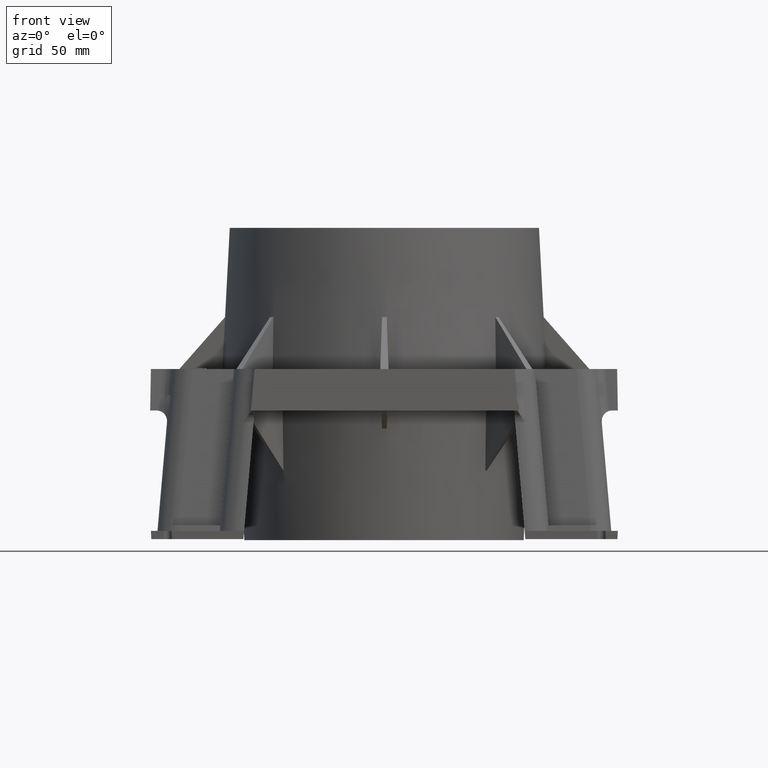
[diagram: clean part render]
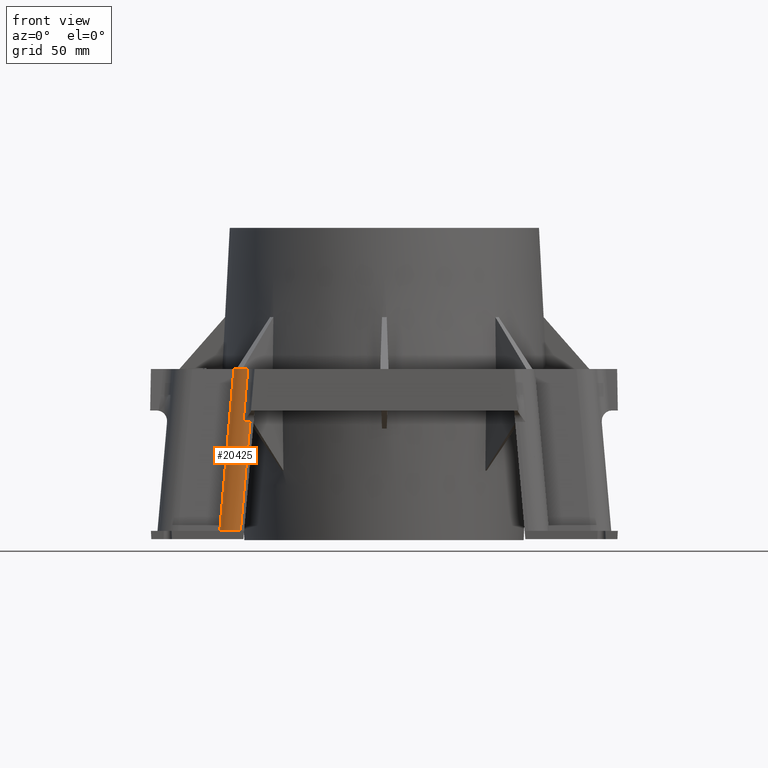
[diagram: same view with one face highlighted and labeled with its STEP entity id]
A machine part, front view. The second image highlights one B-rep face of the part: STEP entity #20425.
In plain terms, the highlighted cylindrical surface (edge-blend (fillet) strip) has radius 10 mm, axis along (0.0868, 0.0868, 0.9924).
Its self-contained STEP definition (entity closure, byte-faithful):
#98=CYLINDRICAL_SURFACE('',#21562,10.);
#316=ELLIPSE('',#20497,10.0762519445035,10.);
#359=ELLIPSE('',#20647,10.0762519445035,10.);
#407=ELLIPSE('',#20847,10.1707629905774,10.);
#1526=FACE_OUTER_BOUND('',#2577,.T.);
#2577=EDGE_LOOP('',(#17620,#17621,#17622,#17623,#17624,#17625));
#3413=LINE('',#29057,#5687);
#3418=LINE('',#29079,#5692);
#3427=LINE('',#29116,#5701);
#5687=VECTOR('',#22941,10.);
#5692=VECTOR('',#22958,10.);
#5701=VECTOR('',#22991,10.);
#7502=VERTEX_POINT('',#26261);
#7503=VERTEX_POINT('',#26263);
#8125=VERTEX_POINT('',#28345);
#8126=VERTEX_POINT('',#28347);
#8410=VERTEX_POINT('',#29078);
#8414=VERTEX_POINT('',#29114);
#9366=EDGE_CURVE('',#7503,#7502,#316,.T.);
#10051=EDGE_CURVE('',#8125,#8126,#359,.T.);
#10392=EDGE_CURVE('',#8125,#7503,#3413,.T.);
#10400=EDGE_CURVE('',#8410,#8126,#3418,.T.);
#10412=EDGE_CURVE('',#7502,#8414,#3427,.T.);
#10875=EDGE_CURVE('',#8410,#8414,#407,.T.);
#17620=ORIENTED_EDGE('',*,*,#9366,.T.);
#17621=ORIENTED_EDGE('',*,*,#10412,.T.);
#17622=ORIENTED_EDGE('',*,*,#10875,.F.);
#17623=ORIENTED_EDGE('',*,*,#10400,.T.);
#17624=ORIENTED_EDGE('',*,*,#10051,.F.);
#17625=ORIENTED_EDGE('',*,*,#10392,.T.);
#20425=ADVANCED_FACE('',(#1526),#98,.T.);
#20497=AXIS2_PLACEMENT_3D('',#26264,#21701,#21702);
#20647=AXIS2_PLACEMENT_3D('',#28348,#22478,#22479);
#20847=AXIS2_PLACEMENT_3D('',#30874,#23491,#23492);
#21562=AXIS2_PLACEMENT_3D('',#34226,#26018,#26019);
#21701=DIRECTION('center_axis',(0.,0.,1.));
#21702=DIRECTION('ref_axis',(-0.707106781186548,-0.707106781186548,0.));
#22478=DIRECTION('center_axis',(0.,0.,1.));
#22479=DIRECTION('ref_axis',(-0.707106781186548,-0.707106781186548,0.));
#22941=DIRECTION('',(-0.0868265938642475,-0.0868265938642476,-0.992432509138967));
#22958=DIRECTION('',(0.0868265938642476,0.0868265938642475,0.992432509138967));
#22991=DIRECTION('',(0.0868265938642475,0.0868265938642476,0.992432509138967));
#23491=DIRECTION('center_axis',(-0.0426844052627554,-0.0426844052627554,
0.998176378750133));
#23492=DIRECTION('ref_axis',(-0.70581728623445,-0.705817286234452,-0.0603648648244182));
#26018=DIRECTION('center_axis',(0.0868265938642475,0.0868265938642476,0.992432509138967));
#26019=DIRECTION('ref_axis',(-0.701755757082144,-0.701755757082144,0.122791346617479));
#26261=CARTESIAN_POINT('',(-69.3621687741046,-109.324115755022,-78.));
#26263=CARTESIAN_POINT('',(-79.3241157550221,-99.3621687741046,-78.));
#26264=CARTESIAN_POINT('Origin',(-69.2859173795886,-99.2859173795886,-78.));
#28345=CARTESIAN_POINT('',(-72.5,-92.5380530190825,0.));
#28347=CARTESIAN_POINT('',(-65.8333333333333,-101.942201574064,-6.93889390390723E-17));
#28348=CARTESIAN_POINT('Origin',(-62.4618016245665,-92.4618016245665,0.));
#29057=CARTESIAN_POINT('',(-72.5751016977361,-92.6131547168186,-0.858416333149664));
#29078=CARTESIAN_POINT('',(-68.0689943615378,-104.177862602269,-25.5537224836224));
#29079=CARTESIAN_POINT('',(-65.8877975454727,-101.996665786204,-0.622528793381355));
#29114=CARTESIAN_POINT('',(-64.7633953044887,-104.725342285406,-25.4357787137383));
#29116=CARTESIAN_POINT('',(-62.6131547168186,-102.575101697736,-0.858416333149664));
#30874=CARTESIAN_POINT('Origin',(-64.6490182127147,-94.6490182127146,-25.));
#34226=CARTESIAN_POINT('Origin',(-62.6131547168186,-92.6131547168186,-1.72997376062625));